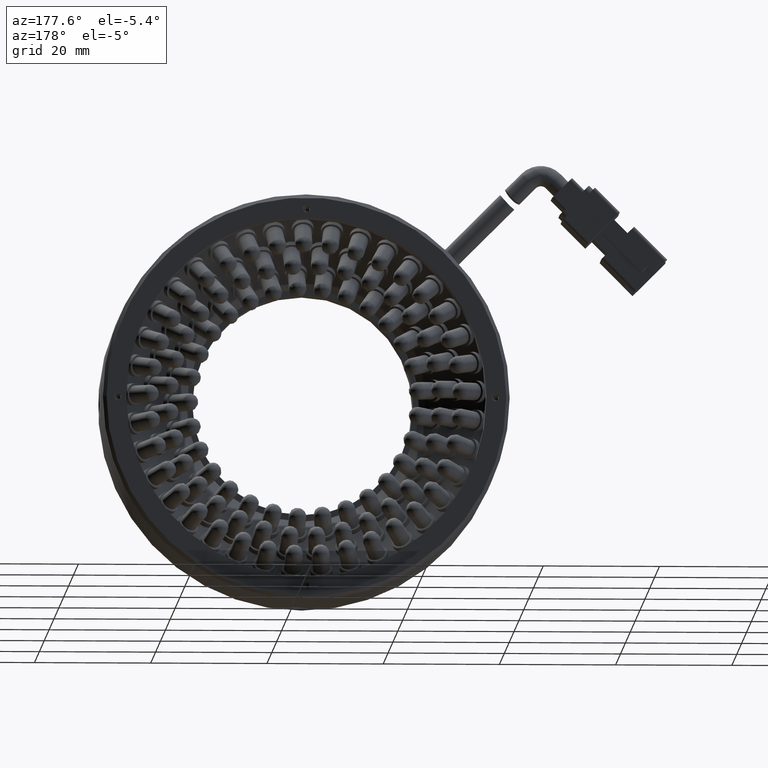
[diagram: clean part render]
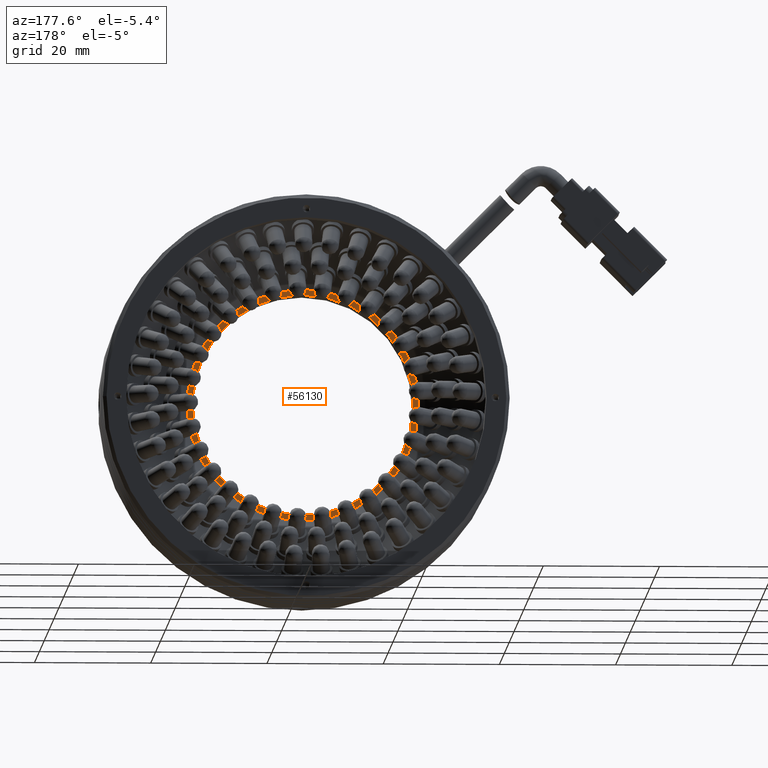
[diagram: same view with one face highlighted and labeled with its STEP entity id]
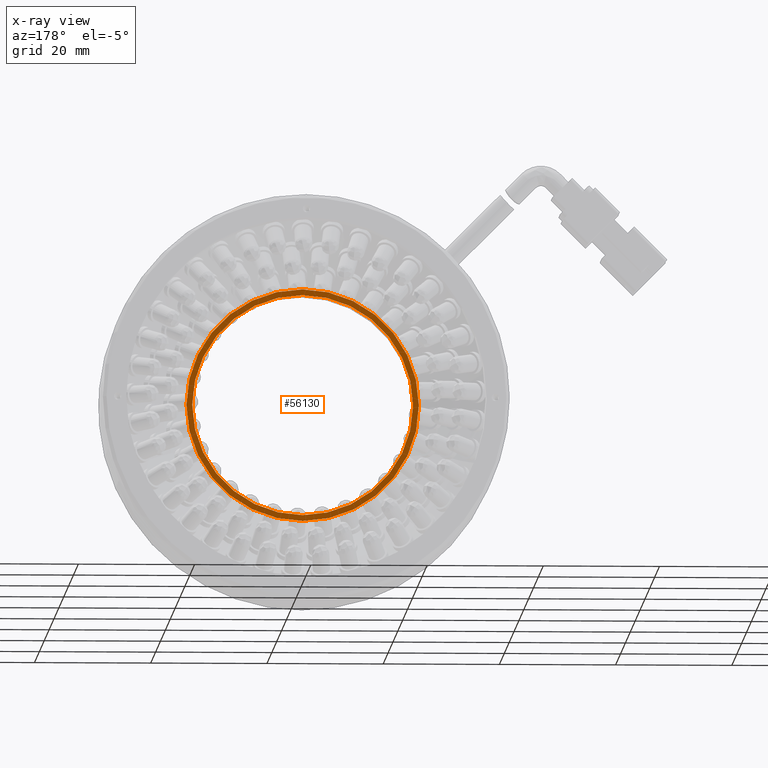
[diagram: x-ray of the same camera — body ghosted, the highlighted face saturated]
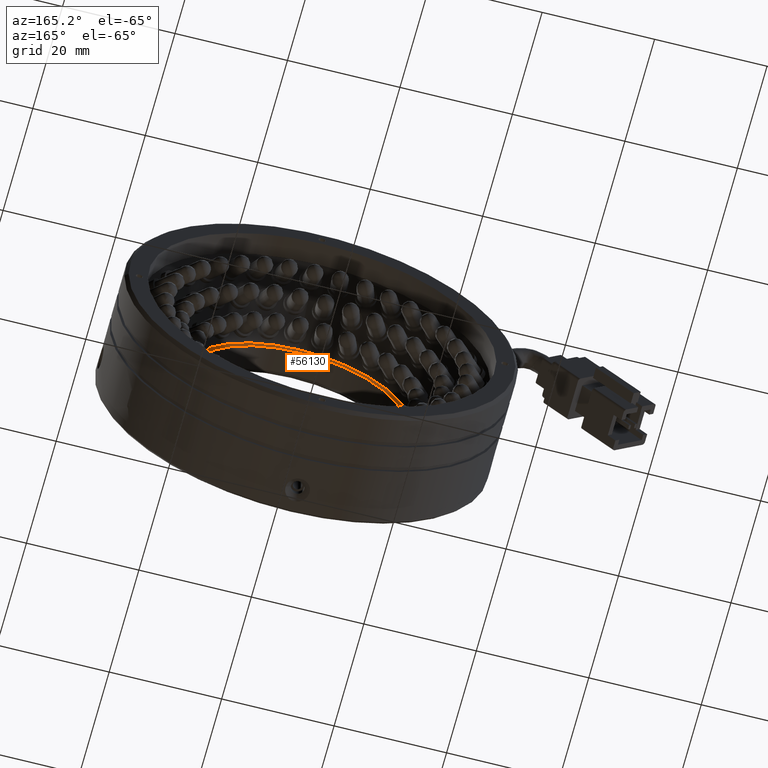
[diagram: same view with one face highlighted and labeled with its STEP entity id]
A machine part, auxiliary view. The second image highlights one B-rep face of the part: STEP entity #56130.
The next image is the same camera in x-ray: the body ghosted, the highlighted face saturated — about 0% of this face is hidden behind the body in this view.
A second angle (auxiliary view) of the same face is appended — the face is thin or edge-on in the first view.
In plain terms, the highlighted planar face has unit normal (0, -1, 0).
Its self-contained STEP definition (entity closure, byte-faithful):
#1987 = PLANE ( 'NONE',  #85678 ) ;
#2184 = CIRCLE ( 'NONE', #38887, 19.99999999999999600 ) ;
#2272 = DIRECTION ( 'NONE',  ( 0.0000000000000000000, -1.000000000000000000, 0.0000000000000000000 ) ) ;
#3454 = VERTEX_POINT ( 'NONE', #10674 ) ;
#4882 = CARTESIAN_POINT ( 'NONE',  ( -2.716071020391494600, 1.807271335108690000, 0.0000000000000000000 ) ) ;
#10674 = CARTESIAN_POINT ( 'NONE',  ( -2.716071020391494600, 1.807271335108690000, -18.99999999999999600 ) ) ;
#11063 = ORIENTED_EDGE ( 'NONE', *, *, #52895, .F. ) ;
#11645 = DIRECTION ( 'NONE',  ( 0.0000000000000000000, 0.0000000000000000000, -1.000000000000000000 ) ) ;
#14936 = VERTEX_POINT ( 'NONE', #74961 ) ;
#15136 = ORIENTED_EDGE ( 'NONE', *, *, #75038, .F. ) ;
#17236 = EDGE_CURVE ( 'NONE', #3454, #61485, #36706, .T. ) ;
#17256 = AXIS2_PLACEMENT_3D ( 'NONE', #4882, #51776, #11645 ) ;
#17415 = DIRECTION ( 'NONE',  ( -0.0000000000000000000, -1.000000000000000000, -0.0000000000000000000 ) ) ;
#17807 = EDGE_LOOP ( 'NONE', ( #53557, #80135 ) ) ;
#19878 = EDGE_CURVE ( 'NONE', #61485, #3454, #57416, .T. ) ;
#26284 = CARTESIAN_POINT ( 'NONE',  ( -2.716071020391494600, 1.807271335108696900, 0.0000000000000000000 ) ) ;
#29755 = VERTEX_POINT ( 'NONE', #79027 ) ;
#31425 = CARTESIAN_POINT ( 'NONE',  ( -2.716071020391494600, 1.807271335108690000, 0.0000000000000000000 ) ) ;
#32992 = DIRECTION ( 'NONE',  ( 0.0000000000000000000, 0.0000000000000000000, -1.000000000000000000 ) ) ;
#36706 = CIRCLE ( 'NONE', #17256, 18.99999999999999600 ) ;
#38181 = DIRECTION ( 'NONE',  ( 0.0000000000000000000, 0.0000000000000000000, -1.000000000000000000 ) ) ;
#38887 = AXIS2_PLACEMENT_3D ( 'NONE', #26284, #73162, #32992 ) ;
#39235 = AXIS2_PLACEMENT_3D ( 'NONE', #57622, #17415, #64351 ) ;
#39462 = CIRCLE ( 'NONE', #39235, 19.99999999999999600 ) ;
#42435 = CARTESIAN_POINT ( 'NONE',  ( -22.71607102039149200, 1.807271335108696900, 0.0000000000000000000 ) ) ;
#43723 = EDGE_LOOP ( 'NONE', ( #11063, #15136 ) ) ;
#46955 = CARTESIAN_POINT ( 'NONE',  ( -2.716071020391492400, 1.807271335108690000, 18.99999999999999600 ) ) ;
#48644 = FACE_OUTER_BOUND ( 'NONE', #43723, .T. ) ;
#49135 = DIRECTION ( 'NONE',  ( 0.0000000000000000000, -0.0000000000000000000, -1.000000000000000000 ) ) ;
#51776 = DIRECTION ( 'NONE',  ( -0.0000000000000000000, -1.000000000000000000, -0.0000000000000000000 ) ) ;
#52895 = EDGE_CURVE ( 'NONE', #14936, #29755, #39462, .T. ) ;
#53557 = ORIENTED_EDGE ( 'NONE', *, *, #17236, .T. ) ;
#56130 = ADVANCED_FACE ( 'NONE', ( #82228, #48644 ), #1987, .F. ) ;
#57416 = CIRCLE ( 'NONE', #81480, 18.99999999999999600 ) ;
#57622 = CARTESIAN_POINT ( 'NONE',  ( -2.716071020391494600, 1.807271335108696900, 0.0000000000000000000 ) ) ;
#61485 = VERTEX_POINT ( 'NONE', #46955 ) ;
#64351 = DIRECTION ( 'NONE',  ( 0.0000000000000000000, 0.0000000000000000000, -1.000000000000000000 ) ) ;
#73162 = DIRECTION ( 'NONE',  ( -0.0000000000000000000, -1.000000000000000000, -0.0000000000000000000 ) ) ;
#74961 = CARTESIAN_POINT ( 'NONE',  ( -2.716071020391494600, 1.807271335108696900, -19.99999999999999600 ) ) ;
#75038 = EDGE_CURVE ( 'NONE', #29755, #14936, #2184, .T. ) ;
#78360 = DIRECTION ( 'NONE',  ( -0.0000000000000000000, -1.000000000000000000, -0.0000000000000000000 ) ) ;
#79027 = CARTESIAN_POINT ( 'NONE',  ( -2.716071020391492000, 1.807271335108696900, 19.99999999999999600 ) ) ;
#80135 = ORIENTED_EDGE ( 'NONE', *, *, #19878, .T. ) ;
#81480 = AXIS2_PLACEMENT_3D ( 'NONE', #31425, #78360, #38181 ) ;
#82228 = FACE_BOUND ( 'NONE', #17807, .T. ) ;
#85678 = AXIS2_PLACEMENT_3D ( 'NONE', #42435, #2272, #49135 ) ;